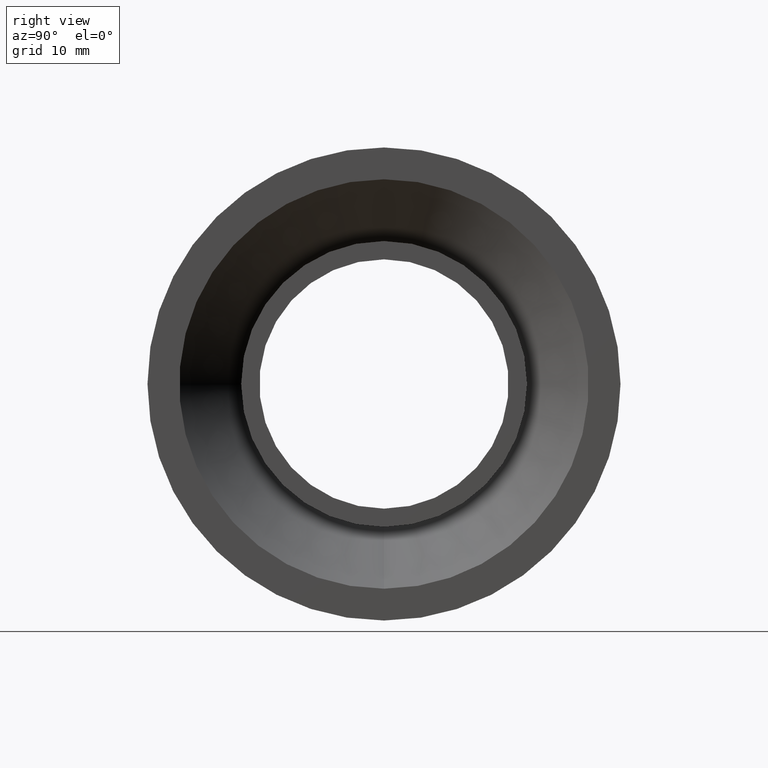
[diagram: clean part render]
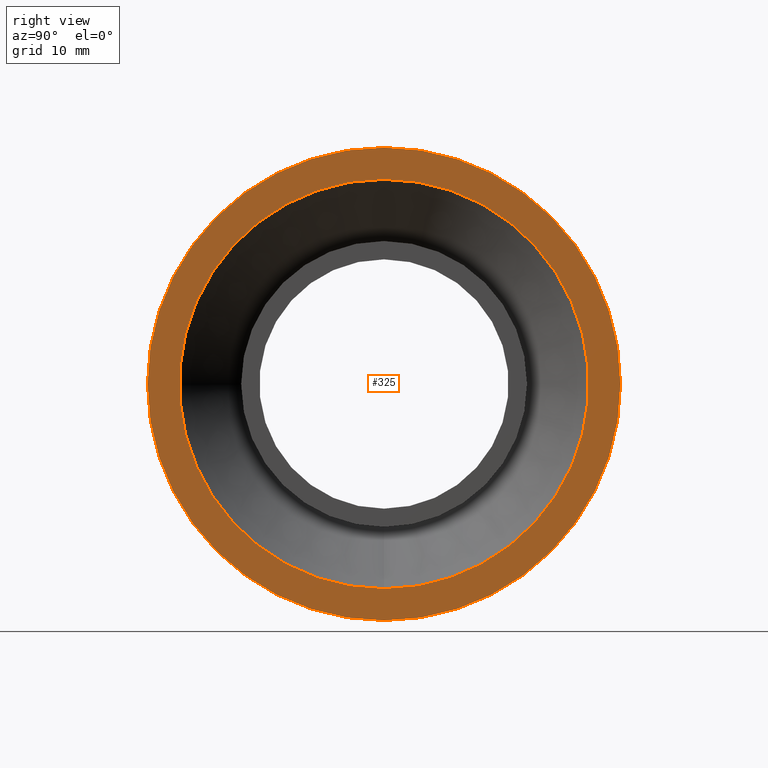
[diagram: same view with one face highlighted and labeled with its STEP entity id]
A machine part, right view. The second image highlights one B-rep face of the part: STEP entity #325.
In plain terms, the highlighted planar face has unit normal (-1, 0, -0).
Its self-contained STEP definition (entity closure, byte-faithful):
#5 = CARTESIAN_POINT ( 'NONE',  ( 15.00000000000000000, 0.0000000000000000000, -23.99999999999999289 ) ) ;
#9 = PLANE ( 'NONE',  #327 ) ;
#25 = DIRECTION ( 'NONE',  ( 0.0000000000000000000, 0.0000000000000000000, 1.000000000000000000 ) ) ;
#46 = ORIENTED_EDGE ( 'NONE', *, *, #321, .F. ) ;
#55 = ORIENTED_EDGE ( 'NONE', *, *, #207, .F. ) ;
#58 = CARTESIAN_POINT ( 'NONE',  ( 14.99999999999999645, 20.77234175015728823, 0.0000000000000000000 ) ) ;
#77 = CARTESIAN_POINT ( 'NONE',  ( 14.99999999999999467, 0.0000000000000000000, -20.77234175015728823 ) ) ;
#87 = VERTEX_POINT ( 'NONE', #175 ) ;
#98 = AXIS2_PLACEMENT_3D ( 'NONE', #144, #104, #193 ) ;
#104 = DIRECTION ( 'NONE',  ( -1.000000000000000000, -0.0000000000000000000, -0.0000000000000000000 ) ) ;
#105 = DIRECTION ( 'NONE',  ( -0.0000000000000000000, 0.0000000000000000000, 1.000000000000000000 ) ) ;
#125 = EDGE_CURVE ( 'NONE', #524, #341, #320, .T. ) ;
#144 = CARTESIAN_POINT ( 'NONE',  ( 15.00000000000000000, 0.0000000000000000000, 0.0000000000000000000 ) ) ;
#150 = CARTESIAN_POINT ( 'NONE',  ( 14.99999999999999467, 2.543878183512505106E-15, 20.77234175015728823 ) ) ;
#153 = CIRCLE ( 'NONE', #98, 23.99999999999999289 ) ;
#169 = CIRCLE ( 'NONE', #358, 20.77234175015728823 ) ;
#172 = DIRECTION ( 'NONE',  ( -1.000000000000000000, -0.0000000000000000000, -0.0000000000000000000 ) ) ;
#174 = CIRCLE ( 'NONE', #403, 23.99999999999999289 ) ;
#175 = CARTESIAN_POINT ( 'NONE',  ( 15.00000000000000000, 2.939152317953647106E-15, 23.99999999999999289 ) ) ;
#193 = DIRECTION ( 'NONE',  ( 0.0000000000000000000, 0.0000000000000000000, 1.000000000000000000 ) ) ;
#194 = EDGE_CURVE ( 'NONE', #341, #524, #169, .T. ) ;
#207 = EDGE_CURVE ( 'NONE', #299, #87, #174, .T. ) ;
#251 = EDGE_LOOP ( 'NONE', ( #326, #426 ) ) ;
#257 = FACE_BOUND ( 'NONE', #251, .T. ) ;
#285 = CARTESIAN_POINT ( 'NONE',  ( 15.00000000000000000, 0.0000000000000000000, 0.0000000000000000000 ) ) ;
#299 = VERTEX_POINT ( 'NONE', #5 ) ;
#320 = CIRCLE ( 'NONE', #539, 20.77234175015728823 ) ;
#321 = EDGE_CURVE ( 'NONE', #87, #299, #153, .T. ) ;
#325 = ADVANCED_FACE ( 'NONE', ( #503, #257 ), #9, .F. ) ;
#326 = ORIENTED_EDGE ( 'NONE', *, *, #125, .T. ) ;
#327 = AXIS2_PLACEMENT_3D ( 'NONE', #58, #367, #105 ) ;
#341 = VERTEX_POINT ( 'NONE', #150 ) ;
#348 = EDGE_LOOP ( 'NONE', ( #55, #46 ) ) ;
#352 = CARTESIAN_POINT ( 'NONE',  ( 14.99999999999999467, 0.0000000000000000000, 0.0000000000000000000 ) ) ;
#358 = AXIS2_PLACEMENT_3D ( 'NONE', #485, #172, #533 ) ;
#367 = DIRECTION ( 'NONE',  ( -1.000000000000000000, 0.0000000000000000000, -0.0000000000000000000 ) ) ;
#398 = DIRECTION ( 'NONE',  ( -1.000000000000000000, -0.0000000000000000000, -0.0000000000000000000 ) ) ;
#403 = AXIS2_PLACEMENT_3D ( 'NONE', #285, #432, #25 ) ;
#426 = ORIENTED_EDGE ( 'NONE', *, *, #194, .T. ) ;
#432 = DIRECTION ( 'NONE',  ( -1.000000000000000000, -0.0000000000000000000, -0.0000000000000000000 ) ) ;
#485 = CARTESIAN_POINT ( 'NONE',  ( 14.99999999999999467, 0.0000000000000000000, 0.0000000000000000000 ) ) ;
#503 = FACE_OUTER_BOUND ( 'NONE', #348, .T. ) ;
#524 = VERTEX_POINT ( 'NONE', #77 ) ;
#525 = DIRECTION ( 'NONE',  ( 0.0000000000000000000, 0.0000000000000000000, 1.000000000000000000 ) ) ;
#533 = DIRECTION ( 'NONE',  ( 0.0000000000000000000, 0.0000000000000000000, 1.000000000000000000 ) ) ;
#539 = AXIS2_PLACEMENT_3D ( 'NONE', #352, #398, #525 ) ;